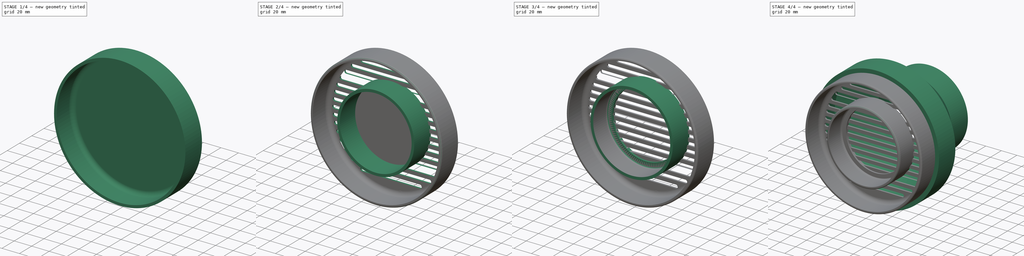
[diagram: build sequence overview — one tinted view per stage of 4, left to right]
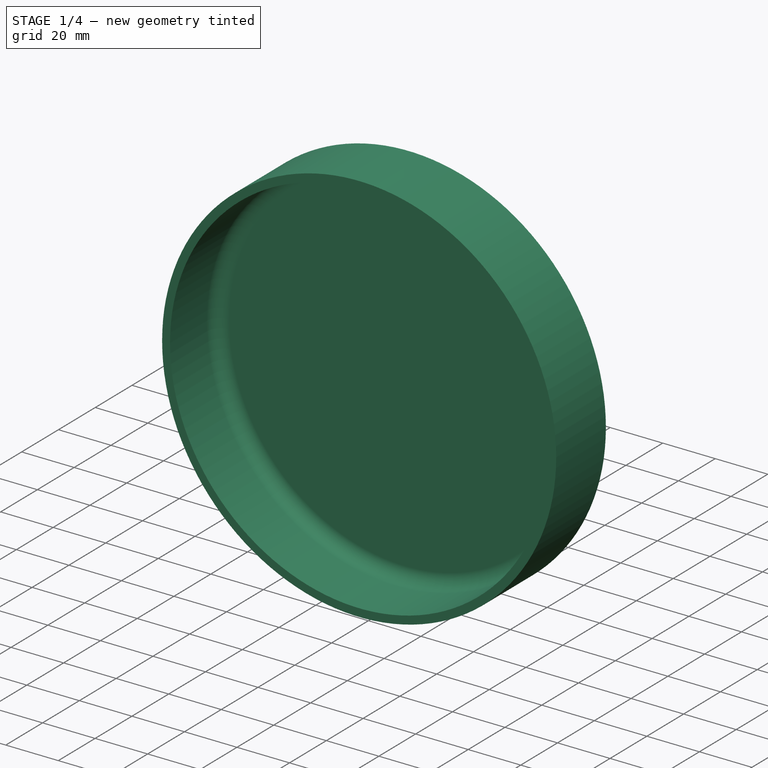
[diagram: stage 1 of 4 — iso view after this stage's code; geometry added in this stage tinted green]
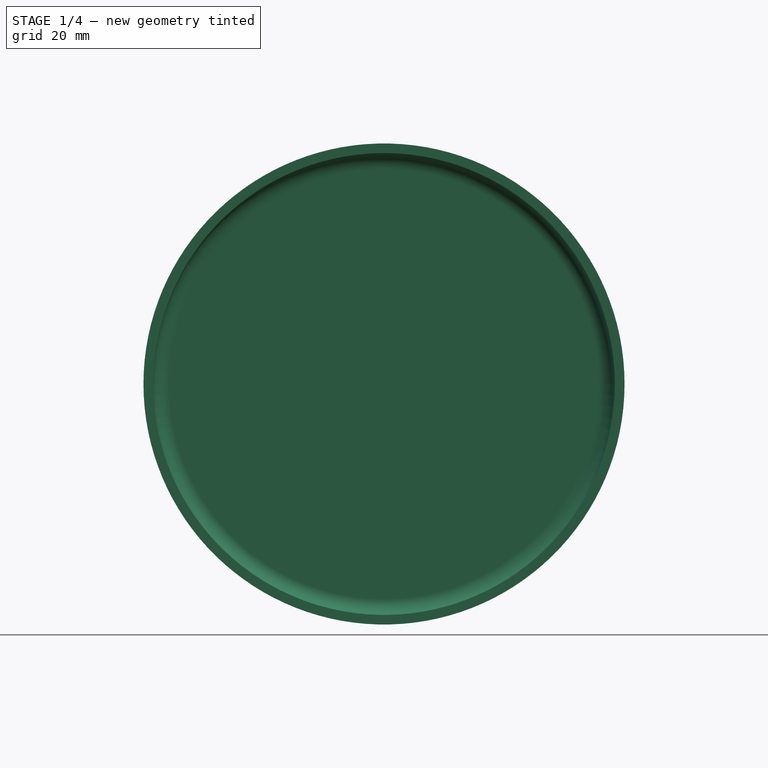
[diagram: stage 1 of 4 — front view after this stage's code; geometry added in this stage tinted green]
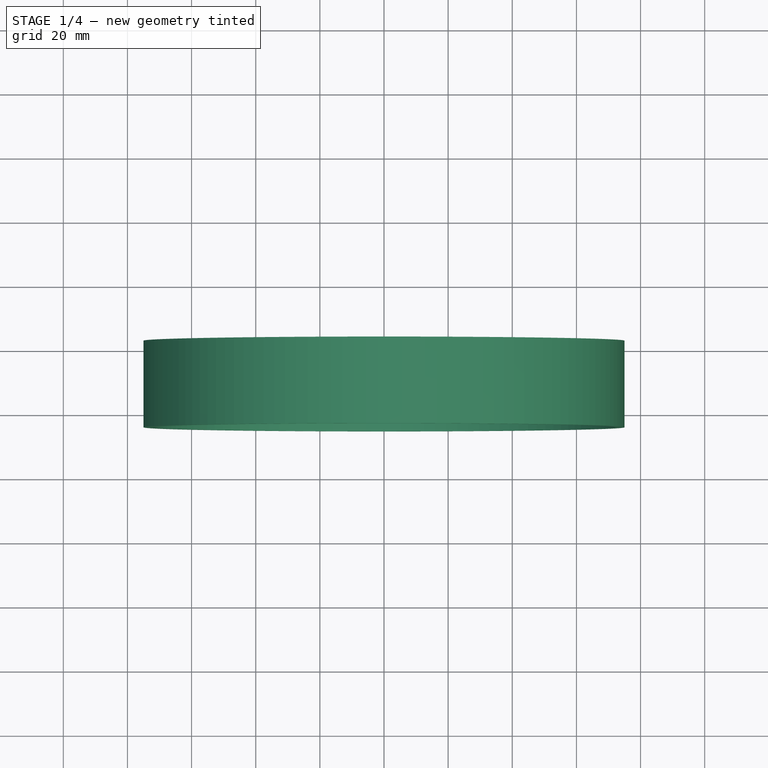
[diagram: stage 1 of 4 — top view after this stage's code; geometry added in this stage tinted green]
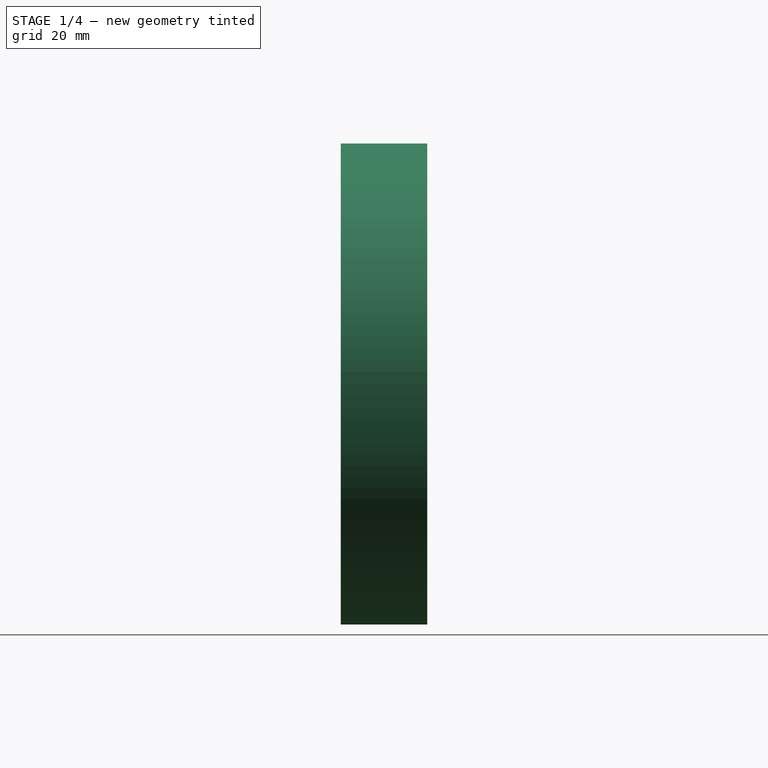
[diagram: stage 1 of 4 — right view after this stage's code; geometry added in this stage tinted green]
FCSTD DOCUMENT  (FreeCAD 0.19R23463 (Git))
Label: Lueftung150-100
License: All rights reserved
LicenseURL: http://en.wikipedia.org/wiki/All_rights_reserved
objects: Sketcher::SketchObject×6, PartDesign::Fillet×4, PartDesign::Revolution×3, PartDesign::Body×3, PartDesign::Pocket×2, PartDesign::Pad×1
note: 29 computed .brp shape members not serialized (recipe doc carries the construction recipe); baked Part::Feature solids carry a one-line shape summary decoded from their .brp

FEATURE [PartDesign::Body] Body
  Group = -> [Sketch,Revolution]
  Origin = -> Origin
  Tip = -> Revolution
FEATURE [Sketcher::SketchObject] Sketch001
  MapMode = 5
  Support = -> [XY_Plane001]
  sketch-geometry (7):
    g0: LineSegment StartX=0 StartY=0 StartZ=0 EndX=-72 EndY=0 EndZ=0
    g1: LineSegment StartX=-72 StartY=0 StartZ=0 EndX=-72 EndY=-25 EndZ=0
    g2: LineSegment StartX=-72 StartY=-25 StartZ=0 EndX=-75 EndY=-25 EndZ=0
    g3: LineSegment StartX=-75 StartY=-25 StartZ=0 EndX=-75 EndY=0 EndZ=0
    g4: LineSegment StartX=-75 StartY=0 StartZ=0 EndX=-75 EndY=2 EndZ=0
    g5: LineSegment StartX=0 StartY=2 StartZ=0 EndX=0 EndY=0 EndZ=0
    g6: LineSegment StartX=-75 StartY=2 StartZ=0 EndX=0 EndY=2 EndZ=0
  constraints (20):
    c: Coincident(g0,g-1)
    c: PointOnObject(g0,g-1)
    c: Coincident(g1,g0)
    c: Vertical(g1)
    c: Coincident(g2,g1)
    c: Horizontal(g2)
    c: Coincident(g3,g2)
    c: PointOnObject(g3,g-1)
    c: Vertical(g3)
    c: Coincident(g4,g3)
    c: Vertical(g4)
    c: PointOnObject(g5,g-2)
    c: Coincident(g5,g0)
    c: DistanceX(g3,g0) = 75
    c: DistanceX(g2,g1) = 3
    c: Coincident(g6,g4)
    c: Coincident(g6,g5)
    c: Horizontal(g6)
    c: DistanceY(g2,g3) = 25
    c: DistanceY(g3,g4) = 2
FEATURE [PartDesign::Revolution] Revolution001
  Angle = 360
  Axis = (0,1,0)
  Base = (0,0,0)
  Profile = -> Sketch001
  ReferenceAxis = -> Sketch001 [V_Axis]
  Refine = true
FEATURE [PartDesign::Fillet] Fillet
  Base = -> Revolution001 [Edge4]
  BaseFeature = -> Revolution001
  Radius = 5
  Refine = true
  SupportTransform = false
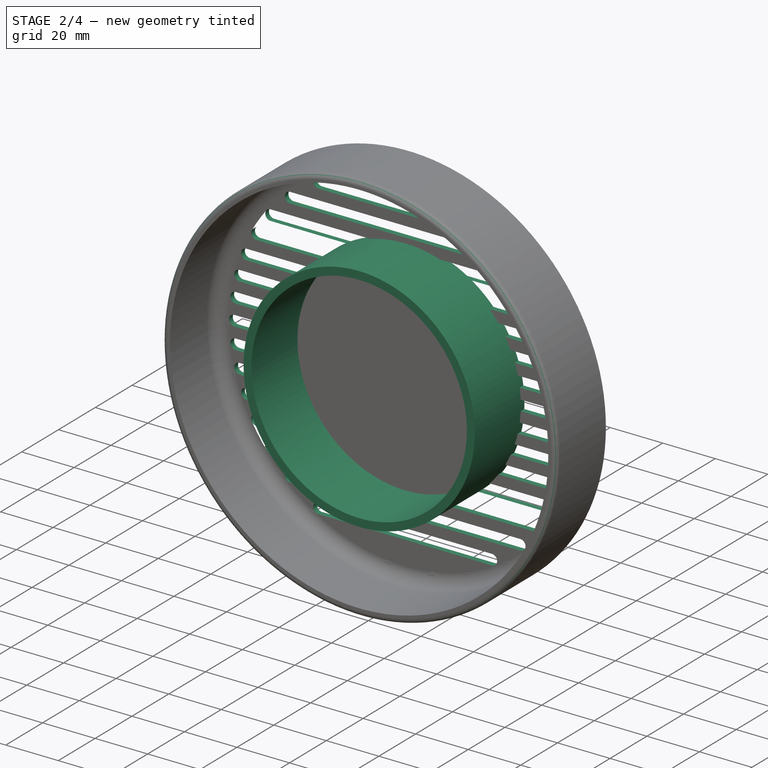
[diagram: stage 2 of 4 — iso view after this stage's code; geometry added in this stage tinted green]
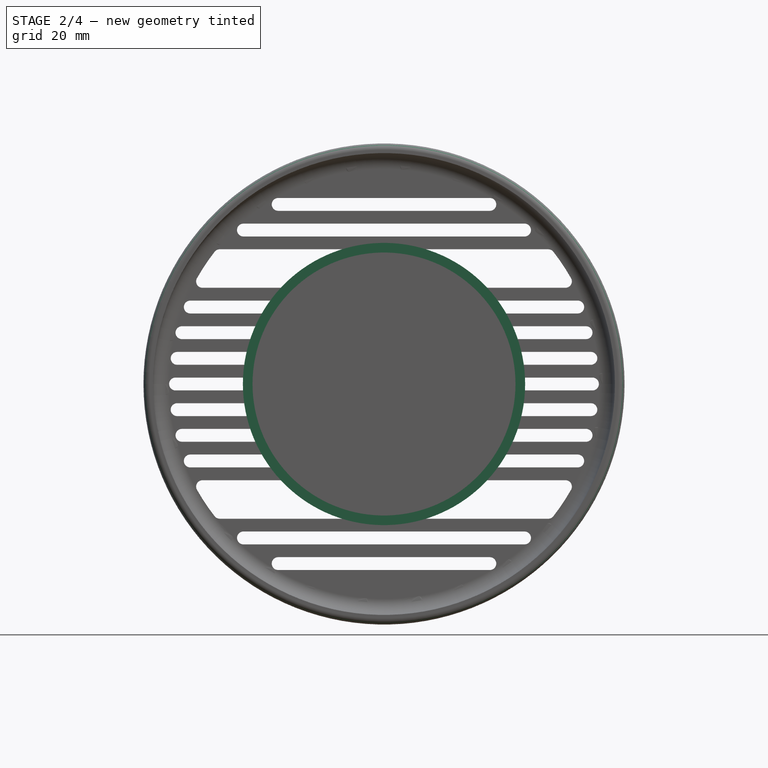
[diagram: stage 2 of 4 — front view after this stage's code; geometry added in this stage tinted green]
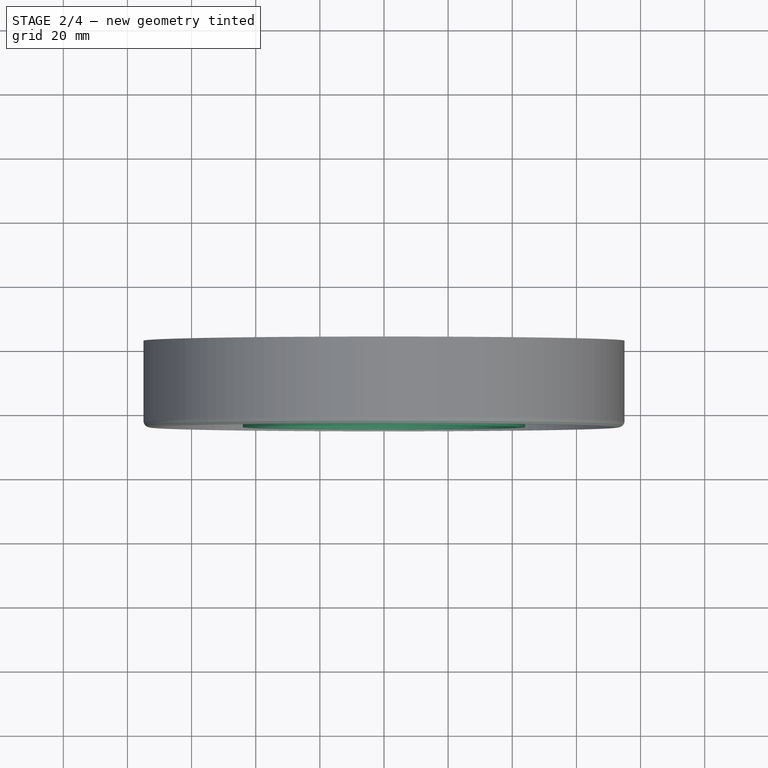
[diagram: stage 2 of 4 — top view after this stage's code; geometry added in this stage tinted green]
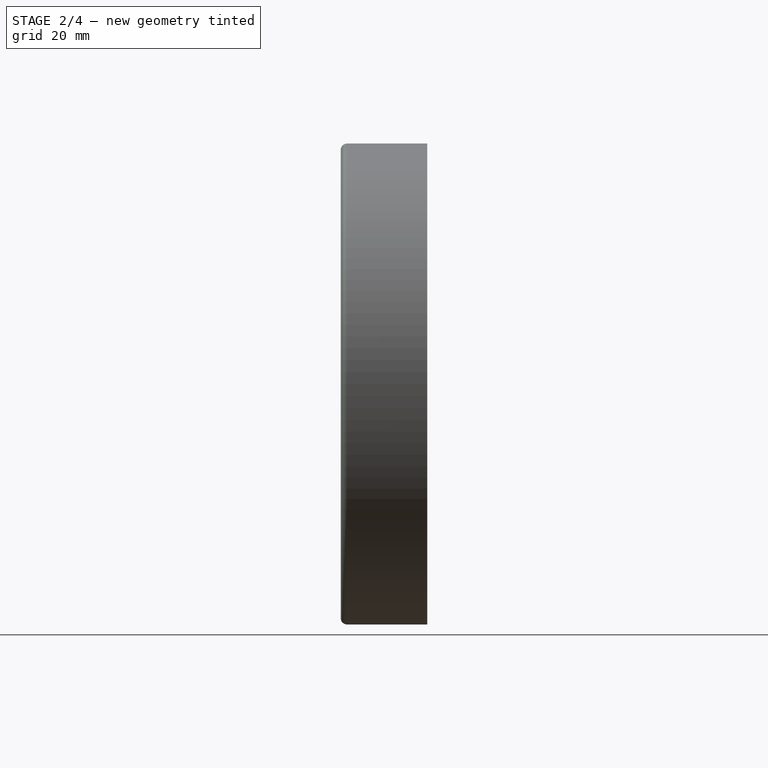
[diagram: stage 2 of 4 — right view after this stage's code; geometry added in this stage tinted green]
FEATURE [Sketcher::SketchObject] Sketch002
  MapMode = 5
  Placement = pos=(0,0,0) rot=(1,0,0;1.5708rad)
  Support = -> [Fillet]
  sketch-geometry (61):
    g0: ArcOfCircle CenterX=-65 CenterY=0 CenterZ=0 NormalX=0 NormalY=0 NormalZ=1 AngleXU=0 Radius=2 StartAngle=1.5708 EndAngle=4.71239
    g1: ArcOfCircle CenterX=65 CenterY=-1e-16 CenterZ=0 NormalX=0 NormalY=0 NormalZ=1 AngleXU=0 Radius=2 StartAngle=4.71239 EndAngle=7.85398
    g2: LineSegment StartX=-65 StartY=-2 StartZ=0 EndX=65 EndY=-2 EndZ=0
    g3: LineSegment StartX=-65 StartY=2 StartZ=0 EndX=65 EndY=2 EndZ=0
    g4: Circle CenterX=0 CenterY=0 CenterZ=0 NormalX=0 NormalY=0 NormalZ=1 AngleXU=0 Radius=65
    g5: ArcOfCircle CenterX=-64.5058 CenterY=8 CenterZ=0 NormalX=0 NormalY=0 NormalZ=1 AngleXU=0 Radius=2 StartAngle=1.5708 EndAngle=4.71239
    g6: ArcOfCircle CenterX=64.5058 CenterY=8 CenterZ=0 NormalX=0 NormalY=0 NormalZ=1 AngleXU=0 Radius=2 StartAngle=4.71239 EndAngle=7.85398
    g7: LineSegment StartX=-64.5058 StartY=6 StartZ=0 EndX=64.5058 EndY=6 EndZ=0
    g8: LineSegment StartX=-64.5058 StartY=10 StartZ=0 EndX=64.5058 EndY=10 EndZ=0
    g9: ArcOfCircle CenterX=-63 CenterY=16 CenterZ=0 NormalX=0 NormalY=0 NormalZ=1 AngleXU=0 Radius=2 StartAngle=1.5708 EndAngle=4.71239
    g10: ArcOfCircle CenterX=63 CenterY=16 CenterZ=0 NormalX=0 NormalY=0 NormalZ=1 AngleXU=0 Radius=2 StartAngle=4.71239 EndAngle=7.85398
    g11: LineSegment StartX=-63 StartY=14 StartZ=0 EndX=63 EndY=14 EndZ=0
    g12: LineSegment StartX=-63 StartY=18 StartZ=0 EndX=63 EndY=18 EndZ=0
    g13: ArcOfCircle CenterX=-60.407 CenterY=24 CenterZ=0 NormalX=0 NormalY=0 NormalZ=1 AngleXU=0 Radius=2 StartAngle=1.5708 EndAngle=4.71239
    g14: ArcOfCircle CenterX=60.407 CenterY=24 CenterZ=0 NormalX=0 NormalY=0 NormalZ=1 AngleXU=0 Radius=2 StartAngle=4.71239 EndAngle=7.85398
    g15: LineSegment StartX=-60.407 StartY=22 StartZ=0 EndX=60.407 EndY=22 EndZ=0
    g16: LineSegment StartX=-60.407 StartY=26 StartZ=0 EndX=60.407 EndY=26 EndZ=0
    g17: ArcOfCircle CenterX=-56.5774 CenterY=32 CenterZ=0 NormalX=0 NormalY=0 NormalZ=1 AngleXU=0 Radius=2 StartAngle=1.5708 EndAngle=4.71239
    g18: ArcOfCircle CenterX=56.5774 CenterY=32 CenterZ=0 NormalX=0 NormalY=0 NormalZ=1 AngleXU=0 Radius=2 StartAngle=4.71239 EndAngle=7.85398
    g19: LineSegment StartX=-56.5774 StartY=30 StartZ=0 EndX=56.5774 EndY=30 EndZ=0
    g20: LineSegment StartX=-56.5774 StartY=34 StartZ=0 EndX=56.5774 EndY=34 EndZ=0
    g21: ArcOfCircle CenterX=-51.2348 CenterY=40 CenterZ=0 NormalX=0 NormalY=0 NormalZ=1 AngleXU=0 Radius=2 StartAngle=1.5708 EndAngle=4.71239
    g22: ArcOfCircle CenterX=51.2348 CenterY=40 CenterZ=0 NormalX=0 NormalY=0 NormalZ=1 AngleXU=0 Radius=2 StartAngle=4.71239 EndAngle=7.85398
    g23: LineSegment StartX=-51.2348 StartY=38 StartZ=0 EndX=51.2348 EndY=38 EndZ=0
    g24: LineSegment StartX=-51.2348 StartY=42 StartZ=0 EndX=51.2348 EndY=42 EndZ=0
    g25: ArcOfCircle CenterX=-43.8292 CenterY=48 CenterZ=0 NormalX=0 NormalY=0 NormalZ=1 AngleXU=0 Radius=2 StartAngle=1.5708 EndAngle=4.71239
    g26: ArcOfCircle CenterX=43.8292 CenterY=48 CenterZ=0 NormalX=0 NormalY=0 NormalZ=1 AngleXU=0 Radius=2 StartAngle=4.71239 EndAngle=7.85398
    g27: LineSegment StartX=-43.8292 StartY=46 StartZ=0 EndX=43.8292 EndY=46 EndZ=0
    g28: LineSegment StartX=-43.8292 StartY=50 StartZ=0 EndX=43.8292 EndY=50 EndZ=0
    g29: ArcOfCircle CenterX=-33 CenterY=56 CenterZ=0 NormalX=0 NormalY=0 NormalZ=1 AngleXU=0 Radius=2 StartAngle=1.5708 EndAngle=4.71239
    g30: ArcOfCircle CenterX=33 CenterY=56 CenterZ=0 NormalX=0 NormalY=0 NormalZ=1 AngleXU=0 Radius=2 StartAngle=4.71239 EndAngle=7.85398
    g31: LineSegment StartX=-33 StartY=54 StartZ=0 EndX=33 EndY=54 EndZ=0
    g32: LineSegment StartX=-33 StartY=58 StartZ=0 EndX=33 EndY=58 EndZ=0
    g33: ArcOfCircle CenterX=-64.5058 CenterY=-8 CenterZ=0 NormalX=0 NormalY=0 NormalZ=1 AngleXU=0 Radius=2 StartAngle=1.5708 EndAngle=4.71239
    g34: ArcOfCircle CenterX=64.5058 CenterY=-8 CenterZ=0 NormalX=0 NormalY=0 NormalZ=1 AngleXU=0 Radius=2 StartAngle=4.71239 EndAngle=7.85398
    g35: LineSegment StartX=-64.5058 StartY=-10 StartZ=0 EndX=64.5058 EndY=-10 EndZ=0
    g36: LineSegment StartX=-64.5058 StartY=-6 StartZ=0 EndX=64.5058 EndY=-6 EndZ=0
    g37: ArcOfCircle CenterX=-63 CenterY=-16 CenterZ=0 NormalX=0 NormalY=0 NormalZ=1 AngleXU=0 Radius=2 StartAngle=1.5708 EndAngle=4.71239
    g38: ArcOfCircle CenterX=63 CenterY=-16 CenterZ=0 NormalX=0 NormalY=0 NormalZ=1 AngleXU=0 Radius=2 StartAngle=4.71239 EndAngle=7.85398
    g39: LineSegment StartX=-63 StartY=-18 StartZ=0 EndX=63 EndY=-18 EndZ=0
    g40: LineSegment StartX=-63 StartY=-14 StartZ=0 EndX=63 EndY=-14 EndZ=0
    g41: ArcOfCircle CenterX=-60.407 CenterY=-24 CenterZ=0 NormalX=0 NormalY=0 NormalZ=1 AngleXU=0 Radius=2 StartAngle=1.5708 EndAngle=4.71239
    g42: ArcOfCircle CenterX=60.407 CenterY=-24 CenterZ=0 NormalX=0 NormalY=0 NormalZ=1 AngleXU=0 Radius=2 StartAngle=4.71239 EndAngle=7.85398
    g43: LineSegment StartX=-60.407 StartY=-26 StartZ=0 EndX=60.407 EndY=-26 EndZ=0
    g44: LineSegment StartX=-60.407 StartY=-22 StartZ=0 EndX=60.407 EndY=-22 EndZ=0
    g45: ArcOfCircle CenterX=-56.5774 CenterY=-32 CenterZ=0 NormalX=0 NormalY=0 NormalZ=1 AngleXU=0 Radius=2 StartAngle=1.5708 EndAngle=4.71239
    g46: ArcOfCircle CenterX=56.5774 CenterY=-32 CenterZ=0 NormalX=0 NormalY=0 NormalZ=1 AngleXU=0 Radius=2 StartAngle=4.71239 EndAngle=7.85398
    g47: LineSegment StartX=-56.5774 StartY=-34 StartZ=0 EndX=56.5774 EndY=-34 EndZ=0
    g48: LineSegment StartX=-56.5774 StartY=-30 StartZ=0 EndX=56.5774 EndY=-30 EndZ=0
    g49: ArcOfCircle CenterX=-51.2348 CenterY=-40 CenterZ=0 NormalX=0 NormalY=0 NormalZ=1 AngleXU=0 Radius=2 StartAngle=1.5708 EndAngle=4.71239
    g50: ArcOfCircle CenterX=51.2348 CenterY=-40 CenterZ=0 NormalX=0 NormalY=0 NormalZ=1 AngleXU=0 Radius=2 StartAngle=4.71239 EndAngle=7.85398
    g51: LineSegment StartX=-51.2348 StartY=-42 StartZ=0 EndX=51.2348 EndY=-42 EndZ=0
    g52: LineSegment StartX=-51.2348 StartY=-38 StartZ=0 EndX=51.2348 EndY=-38 EndZ=0
    g53: ArcOfCircle CenterX=-43.8292 CenterY=-48 CenterZ=0 NormalX=0 NormalY=0 NormalZ=1 AngleXU=0 Radius=2 StartAngle=1.5708 EndAngle=4.71239
    g54: ArcOfCircle CenterX=43.8292 CenterY=-48 CenterZ=0 NormalX=0 NormalY=0 NormalZ=1 AngleXU=0 Radius=2 StartAngle=4.71239 EndAngle=7.85398
    g55: LineSegment StartX=-43.8292 StartY=-50 StartZ=0 EndX=43.8292 EndY=-50 EndZ=0
    g56: LineSegment StartX=-43.8292 StartY=-46 StartZ=0 EndX=43.8292 EndY=-46 EndZ=0
    g57: ArcOfCircle CenterX=-33 CenterY=-56 CenterZ=0 NormalX=0 NormalY=0 NormalZ=1 AngleXU=0 Radius=2 StartAngle=1.5708 EndAngle=4.71239
    g58: ArcOfCircle CenterX=33 CenterY=-56 CenterZ=0 NormalX=0 NormalY=0 NormalZ=1 AngleXU=0 Radius=2 StartAngle=4.71239 EndAngle=7.85398
    g59: LineSegment StartX=-33 StartY=-58 StartZ=0 EndX=33 EndY=-58 EndZ=0
    g60: LineSegment StartX=-33 StartY=-54 StartZ=0 EndX=33 EndY=-54 EndZ=0
  constraints (152):
    c: Tangent(g0,g3)
    c: Tangent(g0,g2)
    c: Tangent(g2,g1)
    c: Tangent(g3,g1)
    c: Horizontal(g2)
    c: Equal(g0,g1)
    c: PointOnObject(g0,g-1)
    c: DistanceY(g0,g0) = 2
    c: Coincident(g4,g-1)
    c: PointOnObject(g0,g4)
    c: Radius(g4) = 65
    c: PointOnObject(g1,g4)
    c: Tangent(g5,g8)
    c: Tangent(g5,g7)
    c: Tangent(g7,g6)
    c: Tangent(g8,g6)
    c: Horizontal(g7)
    c: Equal(g5,g6)
    c: Tangent(g9,g12)
    c: Tangent(g9,g11)
    c: Tangent(g11,g10)
    c: Tangent(g12,g10)
    c: Horizontal(g11)
    c: Equal(g9,g10)
    c: Tangent(g13,g16)
    c: Tangent(g13,g15)
    c: Tangent(g15,g14)
    c: Tangent(g16,g14)
    c: Horizontal(g15)
    c: Equal(g13,g14)
    c: Tangent(g17,g20)
    c: Tangent(g17,g19)
    c: Tangent(g19,g18)
    c: Tangent(g20,g18)
    c: Horizontal(g19)
    c: Equal(g17,g18)
    c: Tangent(g21,g24)
    c: Tangent(g21,g23)
    c: Tangent(g23,g22)
    c: Tangent(g24,g22)
    c: Horizontal(g23)
    c: Equal(g21,g22)
    c: Tangent(g25,g28)
    c: Tangent(g25,g27)
    c: Tangent(g27,g26)
    c: Tangent(g28,g26)
    c: Horizontal(g27)
    c: Equal(g25,g26)
    c: DistanceY(g25,g25) = 2
    c: DistanceY(g21,g21) = 2
    c: DistanceY(g17,g17) = 2
    c: DistanceY(g13,g13) = 2
    c: DistanceY(g9,g9) = 2
    c: DistanceY(g5,g5) = 2
    c: PointOnObject(g5,g4)
    c: PointOnObject(g9,g4)
    c: PointOnObject(g13,g4)
    c: PointOnObject(g17,g4)
    c: PointOnObject(g21,g4)
    c: PointOnObject(g26,g4)
    c: PointOnObject(g22,g4)
    c: PointOnObject(g18,g4)
    c: PointOnObject(g14,g4)
    c: PointOnObject(g10,g4)
    c: PointOnObject(g6,g4)
    c: DistanceY(g0,g5) = 8
    c: DistanceY(g5,g9) = 8
    c: DistanceY(g9,g13) = 8
    c: DistanceY(g13,g17) = 8
    c: DistanceY(g17,g21) = 8
    c: DistanceY(g21,g25) = 8
    c: PointOnObject(g25,g4)
    c: Tangent(g29,g32)
    c: Tangent(g29,g31)
    c: Tangent(g31,g30)
    c: Tangent(g32,g30)
    c: Horizontal(g31)
    c: Equal(g29,g30)
    c: PointOnObject(g29,g4)
    c: PointOnObject(g30,g4)
    c: DistanceY(g29,g29) = 2
    c: DistanceY(g25,g29) = 8
    c: Tangent(g33,g36)
    c: Tangent(g33,g35)
    c: Tangent(g35,g34)
    c: Tangent(g36,g34)
    c: Horizontal(g35)
    c: Equal(g33,g34)
    c: PointOnObject(g33,g4)
    c: Tangent(g37,g40)
    c: Tangent(g37,g39)
    c: Tangent(g39,g38)
    c: Tangent(g40,g38)
    c: Horizontal(g39)
    c: Equal(g37,g38)
    c: Tangent(g41,g44)
    c: Tangent(g41,g43)
    c: Tangent(g43,g42)
    c: Tangent(g44,g42)
    c: Horizontal(g43)
    c: Equal(g41,g42)
    c: Tangent(g45,g48)
    c: Tangent(g45,g47)
    c: Tangent(g47,g46)
    c: Tangent(g48,g46)
    c: Horizontal(g47)
    c: Equal(g45,g46)
    c: Tangent(g49,g52)
    c: Tangent(g49,g51)
    c: Tangent(g51,g50)
    c: Tangent(g52,g50)
    c: Horizontal(g51)
    c: Equal(g49,g50)
    c: PointOnObject(g34,g4)
    c: PointOnObject(g37,g4)
    c: PointOnObject(g38,g4)
    c: PointOnObject(g42,g4)
    c: PointOnObject(g41,g4)
    c: PointOnObject(g45,g4)
    c: PointOnObject(g46,g4)
    c: PointOnObject(g49,g4)
    c: PointOnObject(g50,g4)
    c: DistanceY(g33,g33) = 2
    c: DistanceY(g37,g37) = 2
    c: DistanceY(g33,g0) = 8
    c: DistanceY(g37,g33) = 8
    c: DistanceY(g41,g41) = 2
    c: DistanceY(g45,g45) = 2
    c: DistanceY(g41,g37) = 8
    c: DistanceY(g45,g41) = 8
    c: DistanceY(g49,g49) = 2
    c: DistanceY(g49,g45) = 8
    c: Tangent(g53,g56)
    c: Tangent(g53,g55)
    c: Tangent(g55,g54)
    c: Tangent(g56,g54)
    c: Horizontal(g55)
    c: Equal(g53,g54)
    c: PointOnObject(g53,g4)
    c: PointOnObject(g54,g4)
    c: DistanceY(g53,g53) = 2
    c: DistanceY(g53,g49) = 8
    c: Tangent(g57,g60)
    c: Tangent(g57,g59)
    c: Tangent(g59,g58)
    c: Tangent(g60,g58)
    c: Horizontal(g59)
    c: Equal(g57,g58)
    c: PointOnObject(g57,g4)
    c: PointOnObject(g58,g4)
    c: DistanceY(g57,g57) = 2
    c: DistanceY(g57,g53) = 8
FEATURE [PartDesign::Pocket] Pocket
  BaseFeature = -> Fillet
  Length = 5
  Length2 = 100
  Profile = -> Sketch002
  Refine = true
  Type = 0
FEATURE [Sketcher::SketchObject] Sketch004
  MapMode = 5
  Support = -> [XY_Plane002]
  sketch-geometry (7):
    g0: LineSegment StartX=0 StartY=0 StartZ=0 EndX=-41 EndY=0 EndZ=0
    g1: LineSegment StartX=-41 StartY=0 StartZ=0 EndX=-41 EndY=-25 EndZ=0
    g2: LineSegment StartX=-41 StartY=-25 StartZ=0 EndX=-44 EndY=-25 EndZ=0
    g3: LineSegment StartX=-44 StartY=-25 StartZ=0 EndX=-44 EndY=0 EndZ=0
    g4: LineSegment StartX=-44 StartY=0 StartZ=0 EndX=-44 EndY=2 EndZ=0
    g5: LineSegment StartX=0 StartY=2 StartZ=0 EndX=0 EndY=0 EndZ=0
    g6: LineSegment StartX=-44 StartY=2 StartZ=0 EndX=0 EndY=2 EndZ=0
  constraints (20):
    c: Coincident(g0,g-1)
    c: PointOnObject(g0,g-1)
    c: Coincident(g1,g0)
    c: Vertical(g1)
    c: Coincident(g2,g1)
    c: Horizontal(g2)
    c: Coincident(g3,g2)
    c: PointOnObject(g3,g-1)
    c: Vertical(g3)
    c: Coincident(g4,g3)
    c: Vertical(g4)
    c: PointOnObject(g5,g-2)
    c: Coincident(g5,g0)
    c: DistanceX(g3,g0) = 44
    c: DistanceX(g2,g1) = 3
    c: Coincident(g6,g4)
    c: Coincident(g6,g5)
    c: Horizontal(g6)
    c: DistanceY(g2,g3) = 25
    c: DistanceY(g3,g4) = 2
FEATURE [PartDesign::Revolution] Revolution002
  Angle = 360
  Axis = (0,1,0)
  Base = (0,0,0)
  Profile = -> Sketch004
  ReferenceAxis = -> Sketch004 [V_Axis]
  Refine = true
FEATURE [PartDesign::Body] Body002  label="Gitter100"
  Group = -> [Sketch004,Revolution002,Fillet001,Sketch003,Pocket001,Sketch005,Pad,Fillet002]
  Origin = -> Origin002
  Placement = pos=(-1,86,0) rot=(0,0,1;3.14159rad)
  Tip = -> Fillet002
FEATURE [PartDesign::Fillet] Fillet003
  Base = -> Pocket [Edge199]
  BaseFeature = -> Pocket
  Radius = 2
  Refine = true
  SupportTransform = false
FEATURE [PartDesign::Body] Body001  label="Gitter150"
  Group = -> [Sketch001,Revolution001,Fillet,Sketch002,Pocket,Fillet003]
  Origin = -> Origin001
  Tip = -> Fillet003
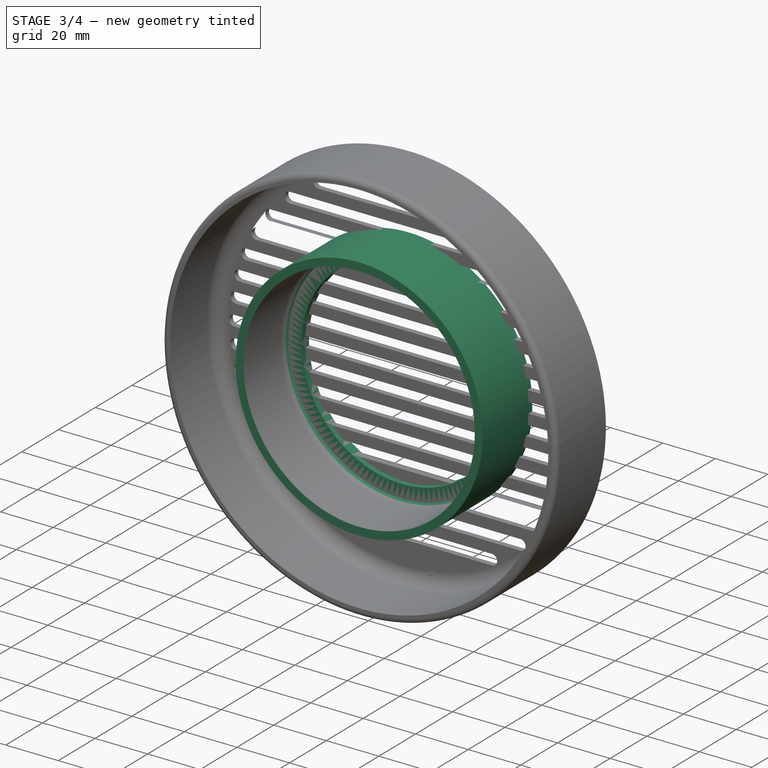
[diagram: stage 3 of 4 — iso view after this stage's code; geometry added in this stage tinted green]
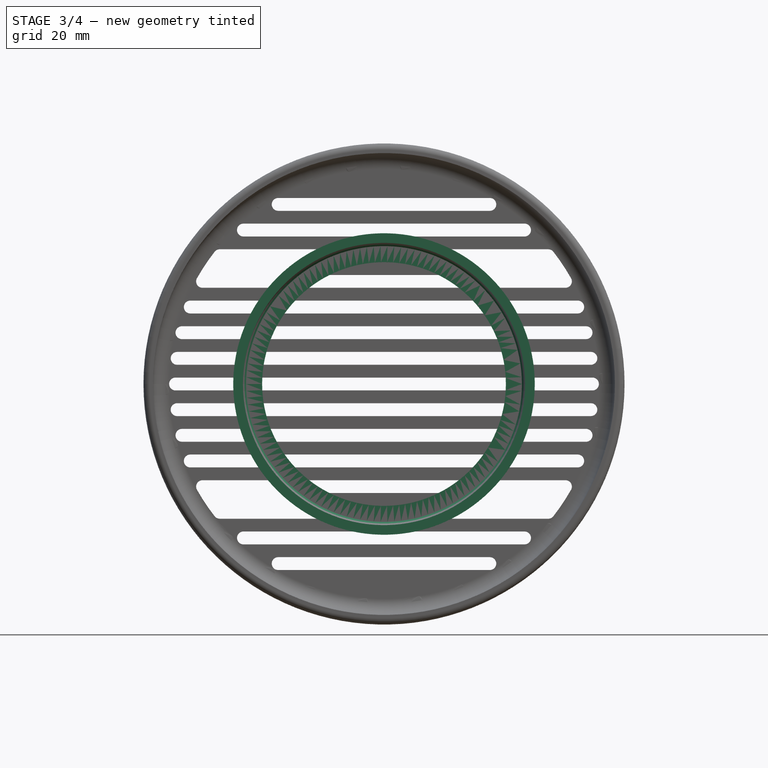
[diagram: stage 3 of 4 — front view after this stage's code; geometry added in this stage tinted green]
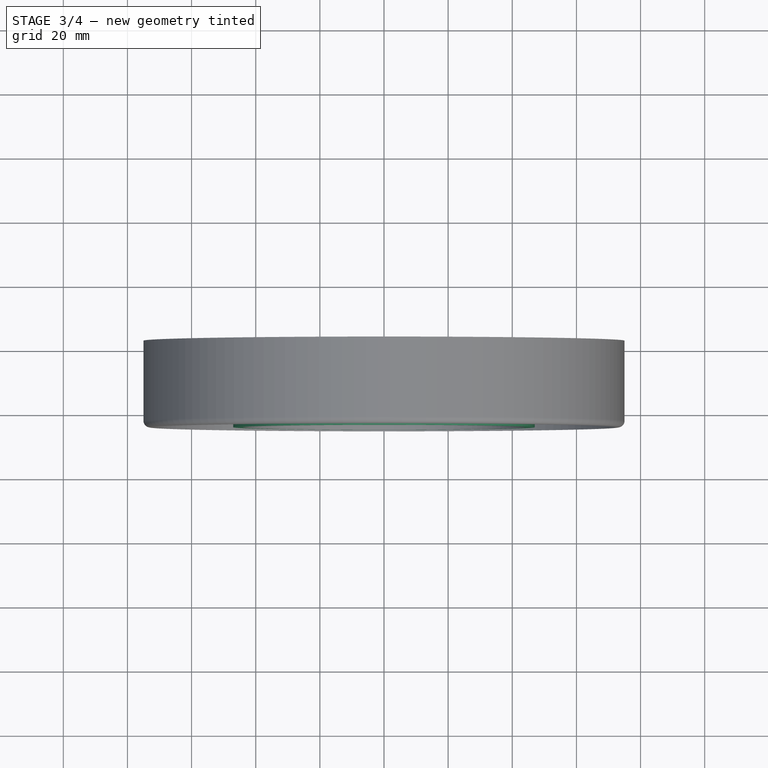
[diagram: stage 3 of 4 — top view after this stage's code; geometry added in this stage tinted green]
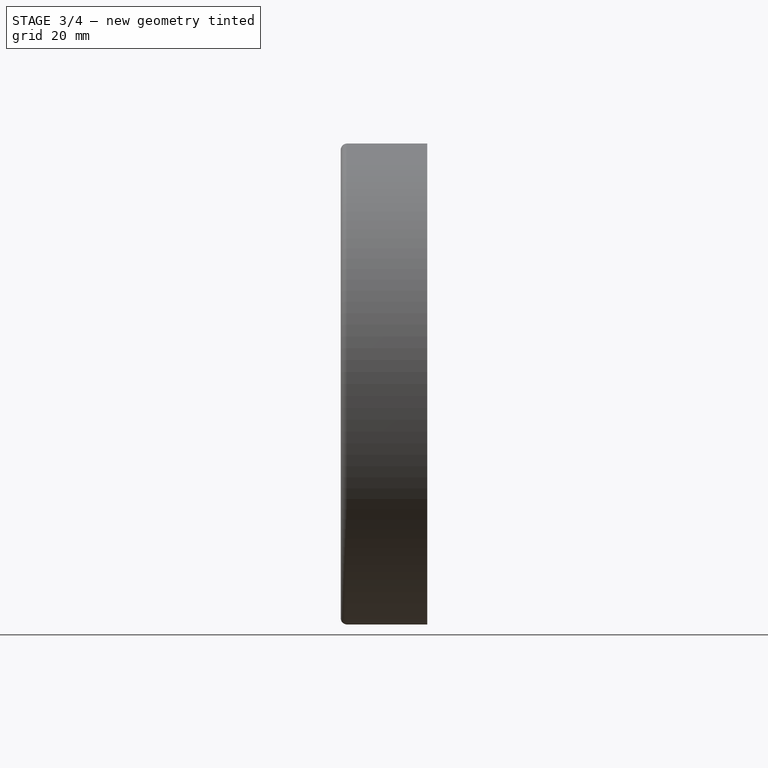
[diagram: stage 3 of 4 — right view after this stage's code; geometry added in this stage tinted green]
FEATURE [PartDesign::Fillet] Fillet001
  Base = -> Revolution002 [Edge4]
  BaseFeature = -> Revolution002
  Radius = 5
  Refine = true
  SupportTransform = false
FEATURE [Sketcher::SketchObject] Sketch003
  MapMode = 5
  Placement = pos=(0,0,0) rot=(1,0,0;1.5708rad)
  Support = -> [Fillet001]
  sketch-geometry (61):
    g0: ArcOfCircle CenterX=-65 CenterY=0 CenterZ=0 NormalX=0 NormalY=0 NormalZ=1 AngleXU=0 Radius=2 StartAngle=1.5708 EndAngle=4.71239
    g1: ArcOfCircle CenterX=65 CenterY=-1e-16 CenterZ=0 NormalX=0 NormalY=0 NormalZ=1 AngleXU=0 Radius=2 StartAngle=4.71239 EndAngle=7.85398
    g2: LineSegment StartX=-65 StartY=-2 StartZ=0 EndX=65 EndY=-2 EndZ=0
    g3: LineSegment StartX=-65 StartY=2 StartZ=0 EndX=65 EndY=2 EndZ=0
    g4: Circle CenterX=0 CenterY=0 CenterZ=0 NormalX=0 NormalY=0 NormalZ=1 AngleXU=0 Radius=65
    g5: ArcOfCircle CenterX=-64.5058 CenterY=8 CenterZ=0 NormalX=0 NormalY=0 NormalZ=1 AngleXU=0 Radius=2 StartAngle=1.5708 EndAngle=4.71239
    g6: ArcOfCircle CenterX=64.5058 CenterY=8 CenterZ=0 NormalX=0 NormalY=0 NormalZ=1 AngleXU=0 Radius=2 StartAngle=4.71239 EndAngle=7.85398
    g7: LineSegment StartX=-64.5058 StartY=6 StartZ=0 EndX=64.5058 EndY=6 EndZ=0
    g8: LineSegment StartX=-64.5058 StartY=10 StartZ=0 EndX=64.5058 EndY=10 EndZ=0
    g9: ArcOfCircle CenterX=-63 CenterY=16 CenterZ=0 NormalX=0 NormalY=0 NormalZ=1 AngleXU=0 Radius=2 StartAngle=1.5708 EndAngle=4.71239
    g10: ArcOfCircle CenterX=63 CenterY=16 CenterZ=0 NormalX=0 NormalY=0 NormalZ=1 AngleXU=0 Radius=2 StartAngle=4.71239 EndAngle=7.85398
    g11: LineSegment StartX=-63 StartY=14 StartZ=0 EndX=63 EndY=14 EndZ=0
    g12: LineSegment StartX=-63 StartY=18 StartZ=0 EndX=63 EndY=18 EndZ=0
    g13: ArcOfCircle CenterX=-60.407 CenterY=24 CenterZ=0 NormalX=0 NormalY=0 NormalZ=1 AngleXU=0 Radius=2 StartAngle=1.5708 EndAngle=4.71239
    g14: ArcOfCircle CenterX=60.407 CenterY=24 CenterZ=0 NormalX=0 NormalY=0 NormalZ=1 AngleXU=0 Radius=2 StartAngle=4.71239 EndAngle=7.85398
    g15: LineSegment StartX=-60.407 StartY=22 StartZ=0 EndX=60.407 EndY=22 EndZ=0
    g16: LineSegment StartX=-60.407 StartY=26 StartZ=0 EndX=60.407 EndY=26 EndZ=0
    g17: ArcOfCircle CenterX=-56.5774 CenterY=32 CenterZ=0 NormalX=0 NormalY=0 NormalZ=1 AngleXU=0 Radius=2 StartAngle=1.5708 EndAngle=4.71239
    g18: ArcOfCircle CenterX=56.5774 CenterY=32 CenterZ=0 NormalX=0 NormalY=0 NormalZ=1 AngleXU=0 Radius=2 StartAngle=4.71239 EndAngle=7.85398
    g19: LineSegment StartX=-56.5774 StartY=30 StartZ=0 EndX=56.5774 EndY=30 EndZ=0
    g20: LineSegment StartX=-56.5774 StartY=34 StartZ=0 EndX=56.5774 EndY=34 EndZ=0
    g21: ArcOfCircle CenterX=-51.2348 CenterY=40 CenterZ=0 NormalX=0 NormalY=0 NormalZ=1 AngleXU=0 Radius=2 StartAngle=1.5708 EndAngle=4.71239
    g22: ArcOfCircle CenterX=51.2348 CenterY=40 CenterZ=0 NormalX=0 NormalY=0 NormalZ=1 AngleXU=0 Radius=2 StartAngle=4.71239 EndAngle=7.85398
    g23: LineSegment StartX=-51.2348 StartY=38 StartZ=0 EndX=51.2348 EndY=38 EndZ=0
    g24: LineSegment StartX=-51.2348 StartY=42 StartZ=0 EndX=51.2348 EndY=42 EndZ=0
    g25: ArcOfCircle CenterX=-43.8292 CenterY=48 CenterZ=0 NormalX=0 NormalY=0 NormalZ=1 AngleXU=0 Radius=2 StartAngle=1.5708 EndAngle=4.71239
    g26: ArcOfCircle CenterX=43.8292 CenterY=48 CenterZ=0 NormalX=0 NormalY=0 NormalZ=1 AngleXU=0 Radius=2 StartAngle=4.71239 EndAngle=7.85398
    g27: LineSegment StartX=-43.8292 StartY=46 StartZ=0 EndX=43.8292 EndY=46 EndZ=0
    g28: LineSegment StartX=-43.8292 StartY=50 StartZ=0 EndX=43.8292 EndY=50 EndZ=0
    g29: ArcOfCircle CenterX=-33 CenterY=56 CenterZ=0 NormalX=0 NormalY=0 NormalZ=1 AngleXU=0 Radius=2 StartAngle=1.5708 EndAngle=4.71239
    g30: ArcOfCircle CenterX=33 CenterY=56 CenterZ=0 NormalX=0 NormalY=0 NormalZ=1 AngleXU=0 Radius=2 StartAngle=4.71239 EndAngle=7.85398
    g31: LineSegment StartX=-33 StartY=54 StartZ=0 EndX=33 EndY=54 EndZ=0
    g32: LineSegment StartX=-33 StartY=58 StartZ=0 EndX=33 EndY=58 EndZ=0
    g33: ArcOfCircle CenterX=-64.5058 CenterY=-8 CenterZ=0 NormalX=0 NormalY=0 NormalZ=1 AngleXU=0 Radius=2 StartAngle=1.5708 EndAngle=4.71239
    g34: ArcOfCircle CenterX=64.5058 CenterY=-8 CenterZ=0 NormalX=0 NormalY=0 NormalZ=1 AngleXU=0 Radius=2 StartAngle=4.71239 EndAngle=7.85398
    g35: LineSegment StartX=-64.5058 StartY=-10 StartZ=0 EndX=64.5058 EndY=-10 EndZ=0
    g36: LineSegment StartX=-64.5058 StartY=-6 StartZ=0 EndX=64.5058 EndY=-6 EndZ=0
    g37: ArcOfCircle CenterX=-63 CenterY=-16 CenterZ=0 NormalX=0 NormalY=0 NormalZ=1 AngleXU=0 Radius=2 StartAngle=1.5708 EndAngle=4.71239
    g38: ArcOfCircle CenterX=63 CenterY=-16 CenterZ=0 NormalX=0 NormalY=0 NormalZ=1 AngleXU=0 Radius=2 StartAngle=4.71239 EndAngle=7.85398
    g39: LineSegment StartX=-63 StartY=-18 StartZ=0 EndX=63 EndY=-18 EndZ=0
    g40: LineSegment StartX=-63 StartY=-14 StartZ=0 EndX=63 EndY=-14 EndZ=0
    g41: ArcOfCircle CenterX=-60.407 CenterY=-24 CenterZ=0 NormalX=0 NormalY=0 NormalZ=1 AngleXU=0 Radius=2 StartAngle=1.5708 EndAngle=4.71239
    g42: ArcOfCircle CenterX=60.407 CenterY=-24 CenterZ=0 NormalX=0 NormalY=0 NormalZ=1 AngleXU=0 Radius=2 StartAngle=4.71239 EndAngle=7.85398
    g43: LineSegment StartX=-60.407 StartY=-26 StartZ=0 EndX=60.407 EndY=-26 EndZ=0
    g44: LineSegment StartX=-60.407 StartY=-22 StartZ=0 EndX=60.407 EndY=-22 EndZ=0
    g45: ArcOfCircle CenterX=-56.5774 CenterY=-32 CenterZ=0 NormalX=0 NormalY=0 NormalZ=1 AngleXU=0 Radius=2 StartAngle=1.5708 EndAngle=4.71239
    g46: ArcOfCircle CenterX=56.5774 CenterY=-32 CenterZ=0 NormalX=0 NormalY=0 NormalZ=1 AngleXU=0 Radius=2 StartAngle=4.71239 EndAngle=7.85398
    g47: LineSegment StartX=-56.5774 StartY=-34 StartZ=0 EndX=56.5774 EndY=-34 EndZ=0
    g48: LineSegment StartX=-56.5774 StartY=-30 StartZ=0 EndX=56.5774 EndY=-30 EndZ=0
    g49: ArcOfCircle CenterX=-51.2348 CenterY=-40 CenterZ=0 NormalX=0 NormalY=0 NormalZ=1 AngleXU=0 Radius=2 StartAngle=1.5708 EndAngle=4.71239
    g50: ArcOfCircle CenterX=51.2348 CenterY=-40 CenterZ=0 NormalX=0 NormalY=0 NormalZ=1 AngleXU=0 Radius=2 StartAngle=4.71239 EndAngle=7.85398
    g51: LineSegment StartX=-51.2348 StartY=-42 StartZ=0 EndX=51.2348 EndY=-42 EndZ=0
    g52: LineSegment StartX=-51.2348 StartY=-38 StartZ=0 EndX=51.2348 EndY=-38 EndZ=0
    g53: ArcOfCircle CenterX=-43.8292 CenterY=-48 CenterZ=0 NormalX=0 NormalY=0 NormalZ=1 AngleXU=0 Radius=2 StartAngle=1.5708 EndAngle=4.71239
    g54: ArcOfCircle CenterX=43.8292 CenterY=-48 CenterZ=0 NormalX=0 NormalY=0 NormalZ=1 AngleXU=0 Radius=2 StartAngle=4.71239 EndAngle=7.85398
    g55: LineSegment StartX=-43.8292 StartY=-50 StartZ=0 EndX=43.8292 EndY=-50 EndZ=0
    g56: LineSegment StartX=-43.8292 StartY=-46 StartZ=0 EndX=43.8292 EndY=-46 EndZ=0
    g57: ArcOfCircle CenterX=-33 CenterY=-56 CenterZ=0 NormalX=0 NormalY=0 NormalZ=1 AngleXU=0 Radius=2 StartAngle=1.5708 EndAngle=4.71239
    g58: ArcOfCircle CenterX=33 CenterY=-56 CenterZ=0 NormalX=0 NormalY=0 NormalZ=1 AngleXU=0 Radius=2 StartAngle=4.71239 EndAngle=7.85398
    g59: LineSegment StartX=-33 StartY=-58 StartZ=0 EndX=33 EndY=-58 EndZ=0
    g60: LineSegment StartX=-33 StartY=-54 StartZ=0 EndX=33 EndY=-54 EndZ=0
  constraints (152):
    c: Tangent(g0,g3)
    c: Tangent(g0,g2)
    c: Tangent(g2,g1)
    c: Tangent(g3,g1)
    c: Horizontal(g2)
    c: Equal(g0,g1)
    c: PointOnObject(g0,g-1)
    c: DistanceY(g0,g0) = 2
    c: Coincident(g4,g-1)
    c: PointOnObject(g0,g4)
    c: Radius(g4) = 65
    c: PointOnObject(g1,g4)
    c: Tangent(g5,g8)
    c: Tangent(g5,g7)
    c: Tangent(g7,g6)
    c: Tangent(g8,g6)
    c: Horizontal(g7)
    c: Equal(g5,g6)
    c: Tangent(g9,g12)
    c: Tangent(g9,g11)
    c: Tangent(g11,g10)
    c: Tangent(g12,g10)
    c: Horizontal(g11)
    c: Equal(g9,g10)
    c: Tangent(g13,g16)
    c: Tangent(g13,g15)
    c: Tangent(g15,g14)
    c: Tangent(g16,g14)
    c: Horizontal(g15)
    c: Equal(g13,g14)
    c: Tangent(g17,g20)
    c: Tangent(g17,g19)
    c: Tangent(g19,g18)
    c: Tangent(g20,g18)
    c: Horizontal(g19)
    c: Equal(g17,g18)
    c: Tangent(g21,g24)
    c: Tangent(g21,g23)
    c: Tangent(g23,g22)
    c: Tangent(g24,g22)
    c: Horizontal(g23)
    c: Equal(g21,g22)
    c: Tangent(g25,g28)
    c: Tangent(g25,g27)
    c: Tangent(g27,g26)
    c: Tangent(g28,g26)
    c: Horizontal(g27)
    c: Equal(g25,g26)
    c: DistanceY(g25,g25) = 2
    c: DistanceY(g21,g21) = 2
    c: DistanceY(g17,g17) = 2
    c: DistanceY(g13,g13) = 2
    c: DistanceY(g9,g9) = 2
    c: DistanceY(g5,g5) = 2
    c: PointOnObject(g5,g4)
    c: PointOnObject(g9,g4)
    c: PointOnObject(g13,g4)
    c: PointOnObject(g17,g4)
    c: PointOnObject(g21,g4)
    c: PointOnObject(g26,g4)
    c: PointOnObject(g22,g4)
    c: PointOnObject(g18,g4)
    c: PointOnObject(g14,g4)
    c: PointOnObject(g10,g4)
    c: PointOnObject(g6,g4)
    c: DistanceY(g0,g5) = 8
    c: DistanceY(g5,g9) = 8
    c: DistanceY(g9,g13) = 8
    c: DistanceY(g13,g17) = 8
    c: DistanceY(g17,g21) = 8
    c: DistanceY(g21,g25) = 8
    c: PointOnObject(g25,g4)
    c: Tangent(g29,g32)
    c: Tangent(g29,g31)
    c: Tangent(g31,g30)
    c: Tangent(g32,g30)
    c: Horizontal(g31)
    c: Equal(g29,g30)
    c: PointOnObject(g29,g4)
    c: PointOnObject(g30,g4)
    c: DistanceY(g29,g29) = 2
    c: DistanceY(g25,g29) = 8
    c: Tangent(g33,g36)
    c: Tangent(g33,g35)
    c: Tangent(g35,g34)
    c: Tangent(g36,g34)
    c: Horizontal(g35)
    c: Equal(g33,g34)
    c: PointOnObject(g33,g4)
    c: Tangent(g37,g40)
    c: Tangent(g37,g39)
    c: Tangent(g39,g38)
    c: Tangent(g40,g38)
    c: Horizontal(g39)
    c: Equal(g37,g38)
    c: Tangent(g41,g44)
    c: Tangent(g41,g43)
    c: Tangent(g43,g42)
    c: Tangent(g44,g42)
    c: Horizontal(g43)
    c: Equal(g41,g42)
    c: Tangent(g45,g48)
    c: Tangent(g45,g47)
    c: Tangent(g47,g46)
    c: Tangent(g48,g46)
    c: Horizontal(g47)
    c: Equal(g45,g46)
    c: Tangent(g49,g52)
    c: Tangent(g49,g51)
    c: Tangent(g51,g50)
    c: Tangent(g52,g50)
    c: Horizontal(g51)
    c: Equal(g49,g50)
    c: PointOnObject(g34,g4)
    c: PointOnObject(g37,g4)
    c: PointOnObject(g38,g4)
    c: PointOnObject(g42,g4)
    c: PointOnObject(g41,g4)
    c: PointOnObject(g45,g4)
    c: PointOnObject(g46,g4)
    c: PointOnObject(g49,g4)
    c: PointOnObject(g50,g4)
    c: DistanceY(g33,g33) = 2
    c: DistanceY(g37,g37) = 2
    c: DistanceY(g33,g0) = 8
    c: DistanceY(g37,g33) = 8
    c: DistanceY(g41,g41) = 2
    c: DistanceY(g45,g45) = 2
    c: DistanceY(g41,g37) = 8
    c: DistanceY(g45,g41) = 8
    c: DistanceY(g49,g49) = 2
    c: DistanceY(g49,g45) = 8
    c: Tangent(g53,g56)
    c: Tangent(g53,g55)
    c: Tangent(g55,g54)
    c: Tangent(g56,g54)
    c: Horizontal(g55)
    c: Equal(g53,g54)
    c: PointOnObject(g53,g4)
    c: PointOnObject(g54,g4)
    c: DistanceY(g53,g53) = 2
    c: DistanceY(g53,g49) = 8
    c: Tangent(g57,g60)
    c: Tangent(g57,g59)
    c: Tangent(g59,g58)
    c: Tangent(g60,g58)
    c: Horizontal(g59)
    c: Equal(g57,g58)
    c: PointOnObject(g57,g4)
    c: PointOnObject(g58,g4)
    c: DistanceY(g57,g57) = 2
    c: DistanceY(g57,g53) = 8
FEATURE [PartDesign::Pocket] Pocket001
  BaseFeature = -> Fillet001
  Length = 5
  Length2 = 100
  Profile = -> Sketch003
  Refine = true
  Type = 0
FEATURE [Sketcher::SketchObject] Sketch005
  MapMode = 5
  Placement = pos=(0,2,0) rot=(0,0.707107,0.707107;3.14159rad)
  Support = -> [Pocket001]
  sketch-geometry (2):
    g0: Circle CenterX=0 CenterY=0 CenterZ=0 NormalX=0 NormalY=0 NormalZ=1 AngleXU=0 Radius=38
    g1: Circle CenterX=0 CenterY=0 CenterZ=0 NormalX=0 NormalY=0 NormalZ=1 AngleXU=0 Radius=44
  constraints (4):
    c: Coincident(g0,g-1)
    c: Coincident(g1,g0)
    c: Radius(g0) = 38
    c: Radius(g1) = 44
FEATURE [PartDesign::Pad] Pad
  BaseFeature = -> Pocket001
  Direction = (1,1,1)
  Length = 4
  Length2 = 100
  Profile = -> Sketch005
  Refine = true
  Reversed = true
  Type = 0
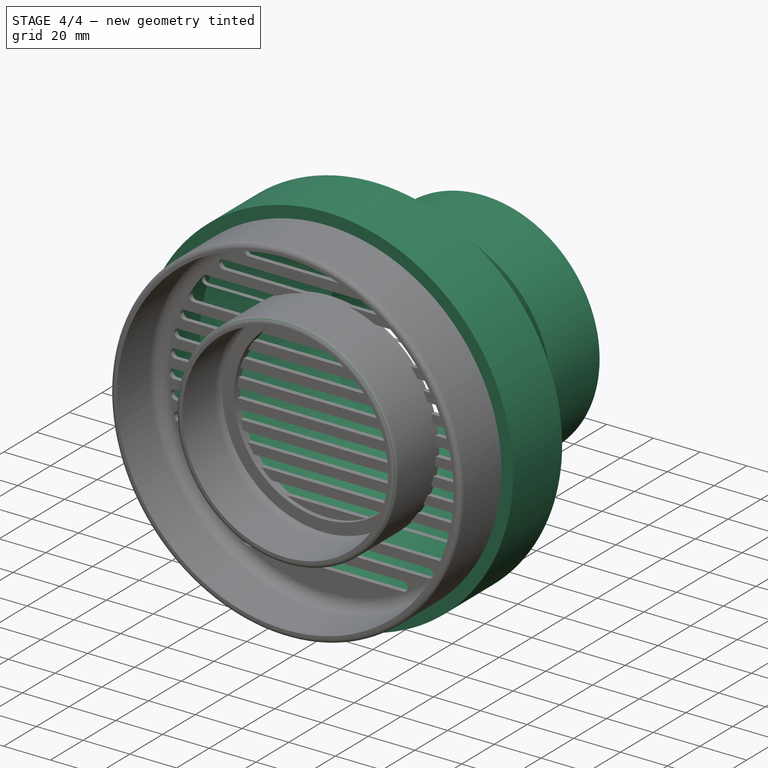
[diagram: stage 4 of 4 — iso view after this stage's code; geometry added in this stage tinted green]
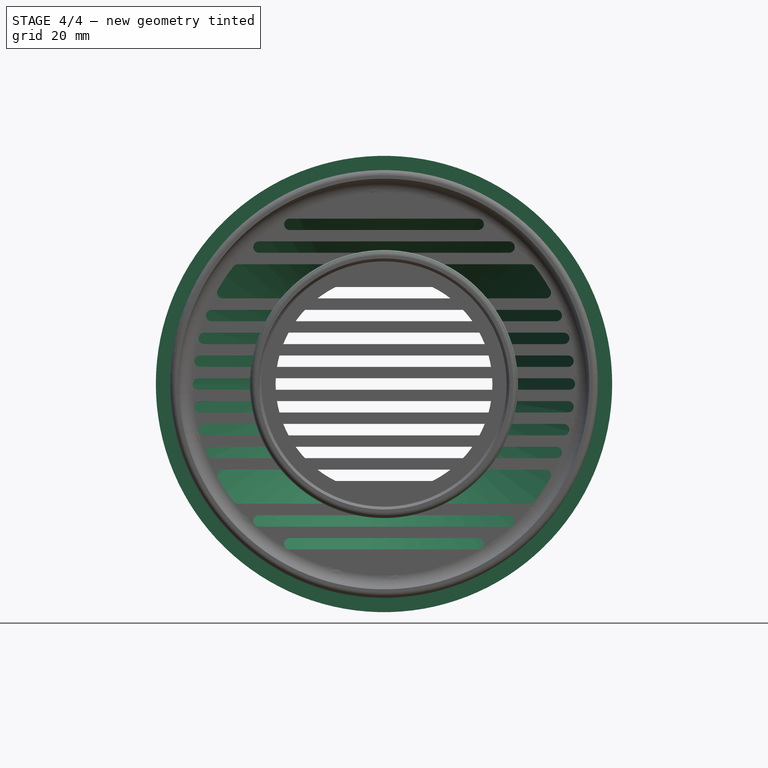
[diagram: stage 4 of 4 — front view after this stage's code; geometry added in this stage tinted green]
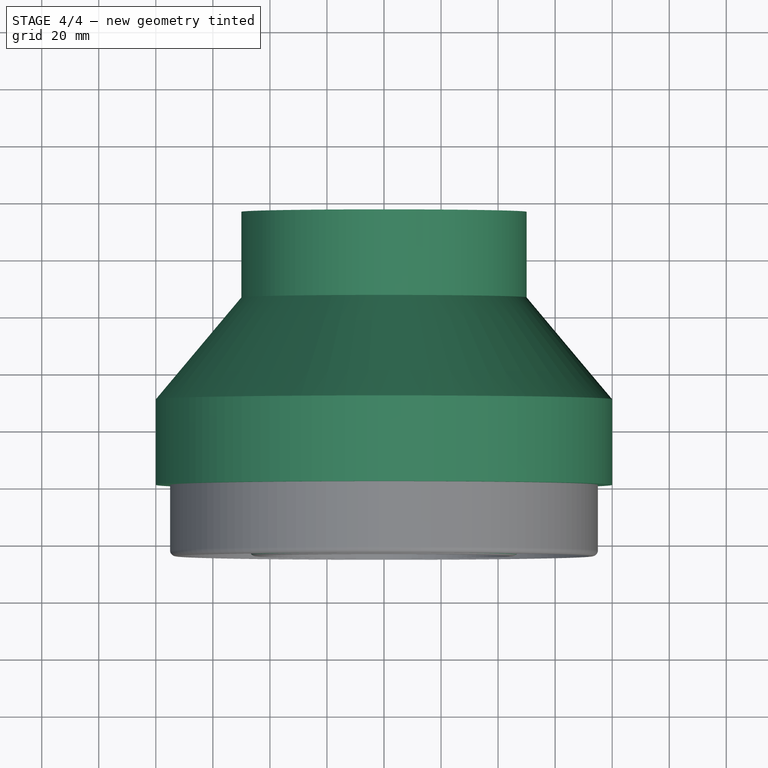
[diagram: stage 4 of 4 — top view after this stage's code; geometry added in this stage tinted green]
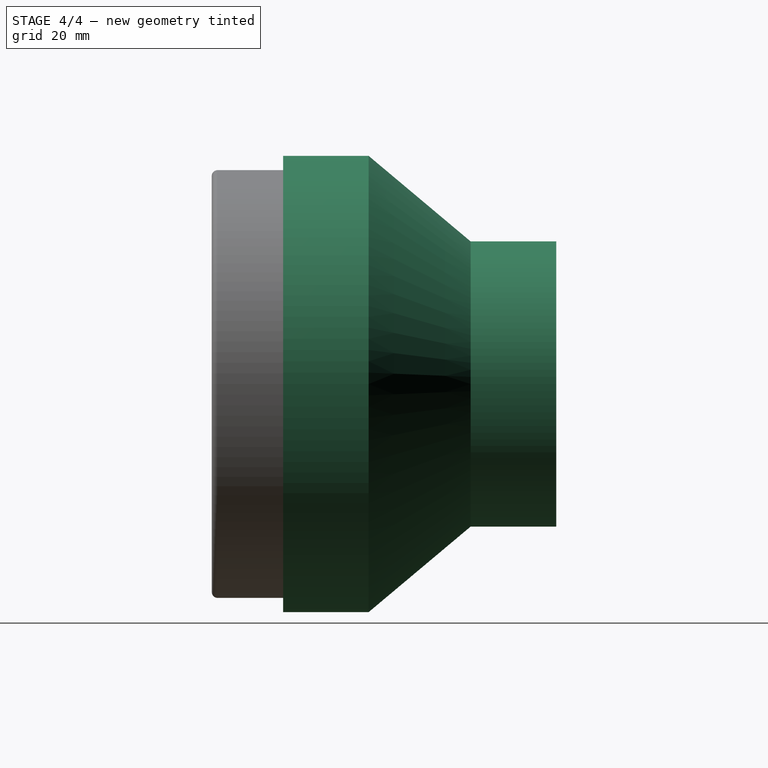
[diagram: stage 4 of 4 — right view after this stage's code; geometry added in this stage tinted green]
FEATURE [Sketcher::SketchObject] Sketch
  MapMode = 5
  Support = -> [XY_Plane]
  sketch-geometry (9):
    g0: LineSegment StartX=-75 StartY=0 StartZ=0 EndX=-80 EndY=0 EndZ=0
    g1: LineSegment StartX=-45 StartY=95.7526 StartZ=0 EndX=-50 EndY=95.7526 EndZ=0
    g2: LineSegment StartX=-80 StartY=0 StartZ=0 EndX=-80 EndY=30 EndZ=0
    g3: LineSegment StartX=-75 StartY=0 StartZ=0 EndX=-75 EndY=30 EndZ=0
    g4: LineSegment StartX=-45 StartY=95.7526 StartZ=0 EndX=-45 EndY=65.7526 EndZ=0
    g5: LineSegment StartX=-50 StartY=95.7526 StartZ=0 EndX=-50 EndY=65.7526 EndZ=0
    g6: LineSegment StartX=-50 StartY=65.7526 StartZ=0 EndX=-80 EndY=30 EndZ=0
    g7: LineSegment StartX=-75 StartY=30 StartZ=0 EndX=-45 EndY=65.7526 EndZ=0
    g8: LineSegment StartX=-80 StartY=30 StartZ=0 EndX=-75 EndY=30 EndZ=0
  constraints (26):
    c: PointOnObject(g0,g-1)
    c: PointOnObject(g0,g-1)
    c: DistanceX(g0,g-1) = 75
    c: DistanceX(g0,g-1) = 80
    c: Horizontal(g1)
    c: DistanceX(g1,g-1) = 50
    c: DistanceX(g1,g-1) = 45
    c: Coincident(g2,g0)
    c: Vertical(g2)
    c: Coincident(g3,g0)
    c: Vertical(g3)
    c: Coincident(g4,g1)
    c: Vertical(g4)
    c: Coincident(g5,g1)
    c: Vertical(g5)
    c: Coincident(g6,g5)
    c: Coincident(g7,g3)
    c: Coincident(g7,g4)
    c: DistanceY(g0,g2) = 30
    c: DistanceY(g0,g3) = 30
    c: DistanceY(g5,g1) = 30
    c: DistanceY(g4,g1) = 30
    c: Coincident(g6,g2)
    c: Coincident(g8,g2)
    c: Coincident(g8,g3)
    c: Angle(g8,g6) = 0.872665
FEATURE [PartDesign::Revolution] Revolution
  Angle = 360
  Axis = (0,1,0)
  Base = (0,0,0)
  Profile = -> Sketch
  ReferenceAxis = -> Sketch [V_Axis]
  Refine = true
FEATURE [PartDesign::Fillet] Fillet002
  Base = -> Pad [Edge118]
  BaseFeature = -> Pad
  Radius = 2
  Refine = true
  SupportTransform = false
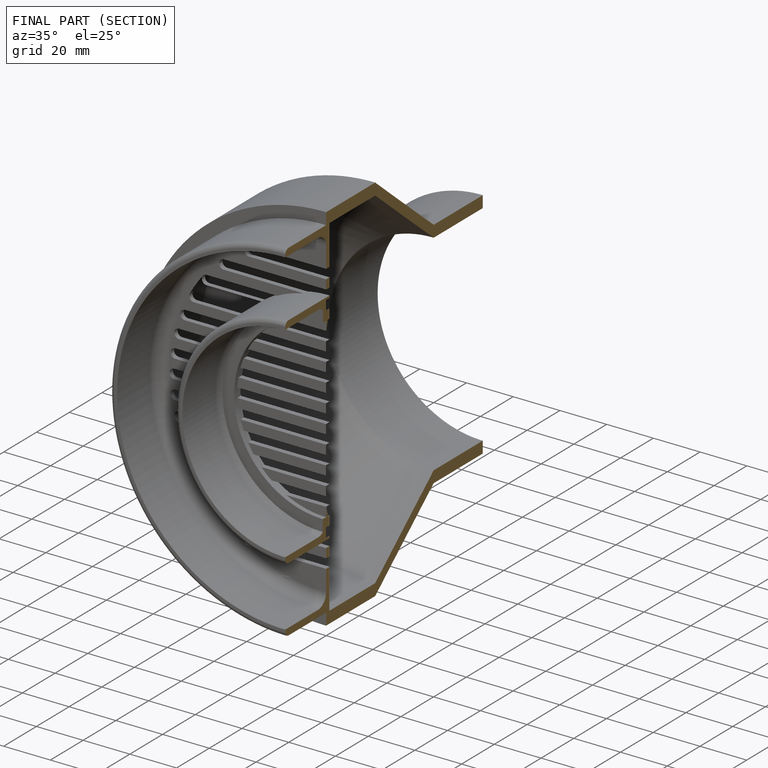
[diagram: finished part — half-section view (interior)]
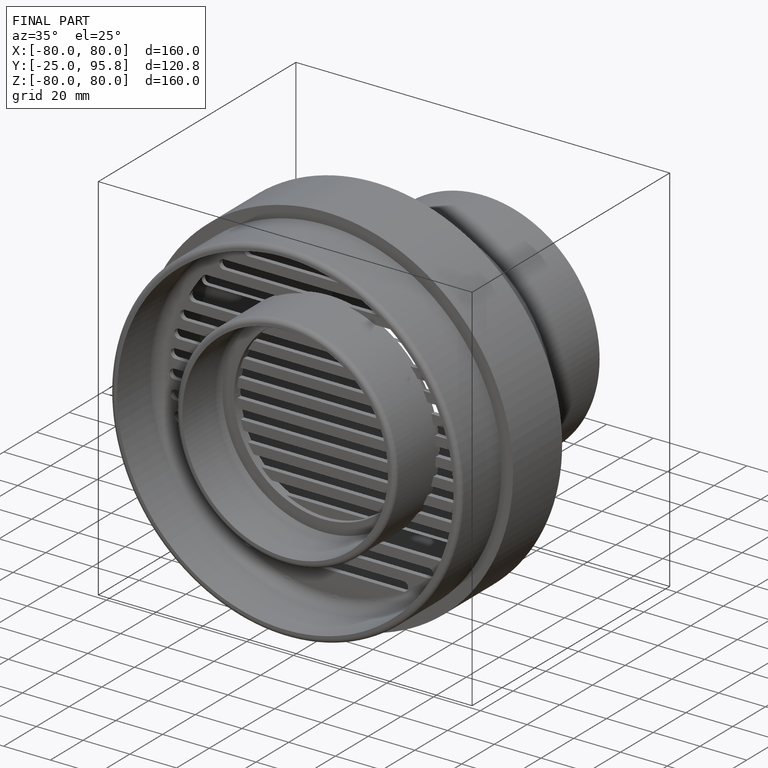
[diagram: finished part — iso view with bounding-box wireframe]
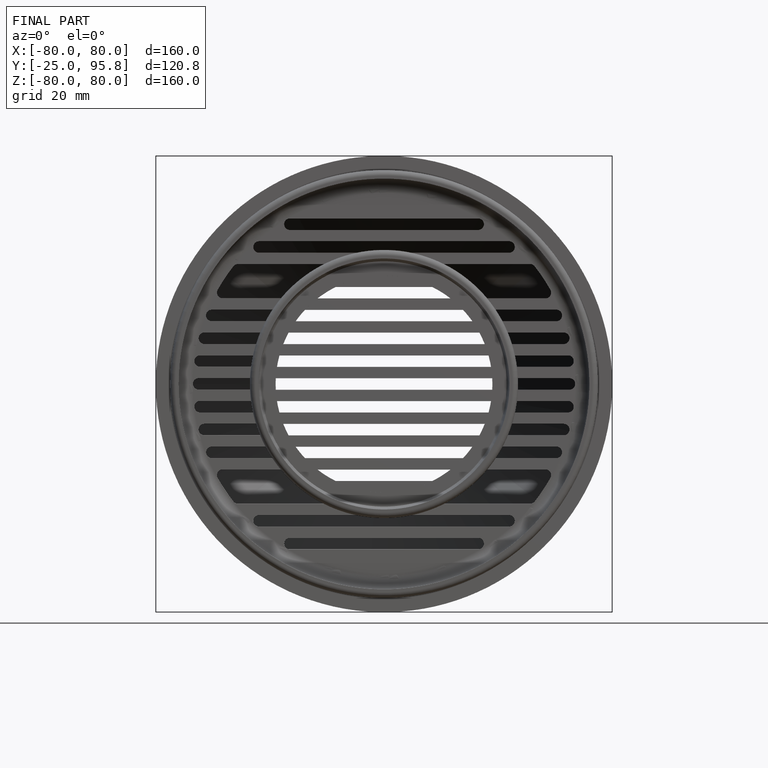
[diagram: finished part — front view with bounding-box wireframe]
